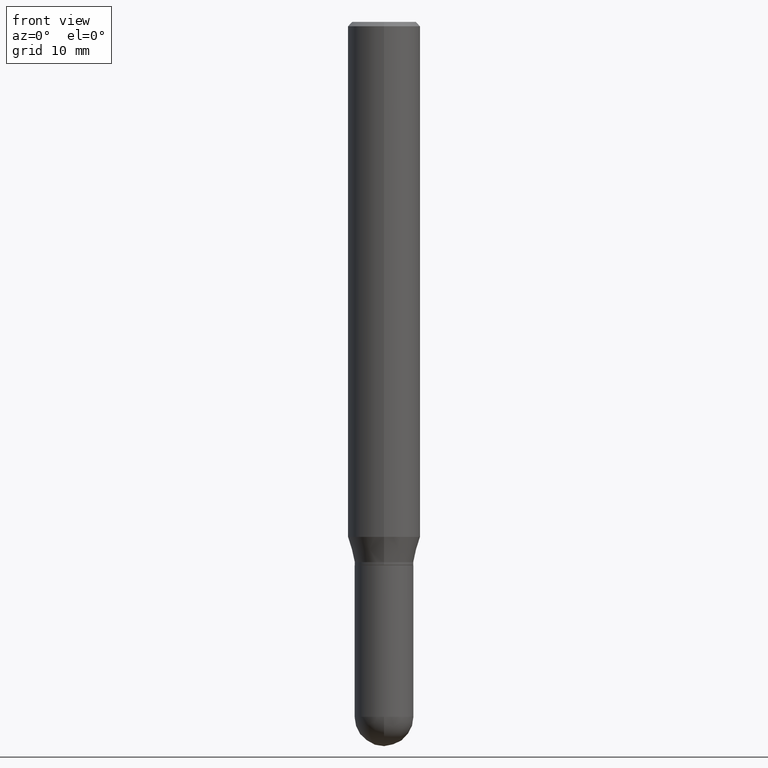
[diagram: clean part render]
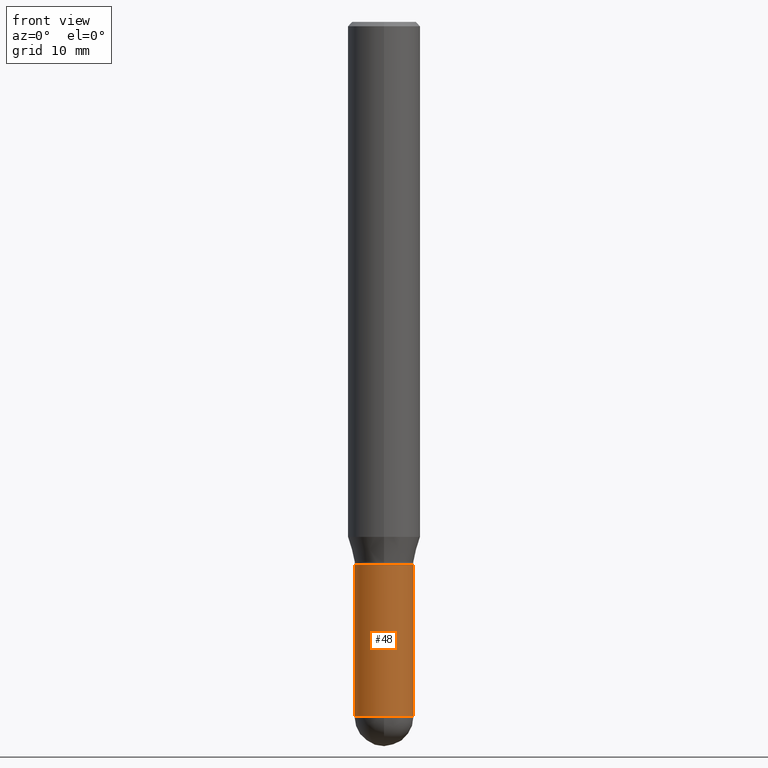
[diagram: same view with one face highlighted and labeled with its STEP entity id]
A machine part, front view. The second image highlights one B-rep face of the part: STEP entity #48.
In plain terms, the highlighted cylindrical surface (edge-blend (fillet) strip) has radius 2.5794 mm, axis along (-0, 0, 1).
Its self-contained STEP definition (entity closure, byte-faithful):
#7 = DIRECTION ( 'NONE',  ( -2.445468806185136597E-29, 3.491481338843145583E-15, 1.000000000000000000 ) ) ;
#9 = CARTESIAN_POINT ( 'NONE',  ( 0.1015500000000000985, -8.169455323658661228E-15, -2.398450000000000415 ) ) ;
#44 = AXIS2_PLACEMENT_3D ( 'NONE', #233, #193, #223 ) ;
#47 = CARTESIAN_POINT ( 'NONE',  ( 0.1015500000000000708, -7.091198599190408807E-16, 4.951757515820776576E-30 ) ) ;
#48 = ADVANCED_FACE ( 'NONE', ( #397 ), #476, .T. ) ;
#59 = DIRECTION ( 'NONE',  ( 1.000000000000000000, -6.982962677686269866E-15, 0.000000000000000000 ) ) ;
#68 = LINE ( 'NONE', #306, #359 ) ;
#88 = ORIENTED_EDGE ( 'NONE', *, *, #170, .F. ) ;
#96 = CIRCLE ( 'NONE', #390, 0.1015500000000000708 ) ;
#97 = DIRECTION ( 'NONE',  ( -2.445468806185136597E-29, 3.491481338843145583E-15, 1.000000000000000000 ) ) ;
#99 = DIRECTION ( 'NONE',  ( -2.445468806185136877E-29, 3.491481338843145188E-15, 1.000000000000000000 ) ) ;
#123 = ORIENTED_EDGE ( 'NONE', *, *, #181, .T. ) ;
#126 = CIRCLE ( 'NONE', #44, 0.1015500000000000985 ) ;
#133 = VECTOR ( 'NONE', #334, 39.37007874015748143 ) ;
#145 = CARTESIAN_POINT ( 'NONE',  ( -0.1015500000000000985, -6.738779315575238500E-15, -2.398450000000000415 ) ) ;
#170 = EDGE_CURVE ( 'NONE', #341, #344, #68, .T. ) ;
#176 = CARTESIAN_POINT ( 'NONE',  ( 0.000000000000000000, 0.000000000000000000, 0.000000000000000000 ) ) ;
#180 = DIRECTION ( 'NONE',  ( 1.000000000000000000, -6.982962677686258033E-15, 0.000000000000000000 ) ) ;
#181 = EDGE_CURVE ( 'NONE', #386, #209, #485, .T. ) ;
#193 = DIRECTION ( 'NONE',  ( -2.445468806185136597E-29, 3.491481338843145583E-15, 1.000000000000000000 ) ) ;
#209 = VERTEX_POINT ( 'NONE', #399 ) ;
#223 = DIRECTION ( 'NONE',  ( 1.000000000000000000, -6.982962677686258033E-15, 0.000000000000000000 ) ) ;
#226 = EDGE_CURVE ( 'NONE', #344, #209, #96, .T. ) ;
#228 = CARTESIAN_POINT ( 'NONE',  ( -0.1015500000000000708, -6.738779315575238500E-15, -1.875000000000000000 ) ) ;
#232 = AXIS2_PLACEMENT_3D ( 'NONE', #176, #7, #441 ) ;
#233 = CARTESIAN_POINT ( 'NONE',  ( 5.865334658194741045E-29, -8.374143417148343763E-15, -2.398450000000000415 ) ) ;
#244 = ORIENTED_EDGE ( 'NONE', *, *, #464, .T. ) ;
#285 = CARTESIAN_POINT ( 'NONE',  ( -7.215561481643230770E-16, -0.1015500000000083697, -2.398449999999999971 ) ) ;
#296 = CIRCLE ( 'NONE', #303, 0.1015500000000000985 ) ;
#303 = AXIS2_PLACEMENT_3D ( 'NONE', #328, #97, #180 ) ;
#306 = CARTESIAN_POINT ( 'NONE',  ( -0.1015500000000000708, 7.215561481643822416E-16, -4.995178584153860605E-30 ) ) ;
#328 = CARTESIAN_POINT ( 'NONE',  ( 5.865334658194741045E-29, -8.374143417148343763E-15, -2.398450000000000415 ) ) ;
#330 = DIRECTION ( 'NONE',  ( -2.445468806185136597E-29, 3.491481338843145583E-15, 1.000000000000000000 ) ) ;
#334 = DIRECTION ( 'NONE',  ( -2.445468806185136877E-29, 3.491481338843145188E-15, 1.000000000000000000 ) ) ;
#341 = VERTEX_POINT ( 'NONE', #145 ) ;
#344 = VERTEX_POINT ( 'NONE', #228 ) ;
#359 = VECTOR ( 'NONE', #99, 39.37007874015748143 ) ;
#385 = EDGE_CURVE ( 'NONE', #341, #420, #296, .T. ) ;
#386 = VERTEX_POINT ( 'NONE', #9 ) ;
#390 = AXIS2_PLACEMENT_3D ( 'NONE', #405, #330, #59 ) ;
#395 = ORIENTED_EDGE ( 'NONE', *, *, #385, .T. ) ;
#397 = FACE_OUTER_BOUND ( 'NONE', #506, .T. ) ;
#399 = CARTESIAN_POINT ( 'NONE',  ( 0.1015500000000000708, -7.255647370249939489E-15, -1.875000000000000000 ) ) ;
#405 = CARTESIAN_POINT ( 'NONE',  ( 4.585254011597131119E-29, -6.546527510330898707E-15, -1.875000000000000000 ) ) ;
#420 = VERTEX_POINT ( 'NONE', #285 ) ;
#441 = DIRECTION ( 'NONE',  ( 1.000000000000000000, -6.982962677686266711E-15, 4.876176775795936353E-29 ) ) ;
#464 = EDGE_CURVE ( 'NONE', #420, #386, #126, .T. ) ;
#476 = CYLINDRICAL_SURFACE ( 'NONE', #232, 0.1015500000000000708 ) ;
#485 = LINE ( 'NONE', #47, #133 ) ;
#491 = ORIENTED_EDGE ( 'NONE', *, *, #226, .F. ) ;
#506 = EDGE_LOOP ( 'NONE', ( #88, #395, #244, #123, #491 ) ) ;